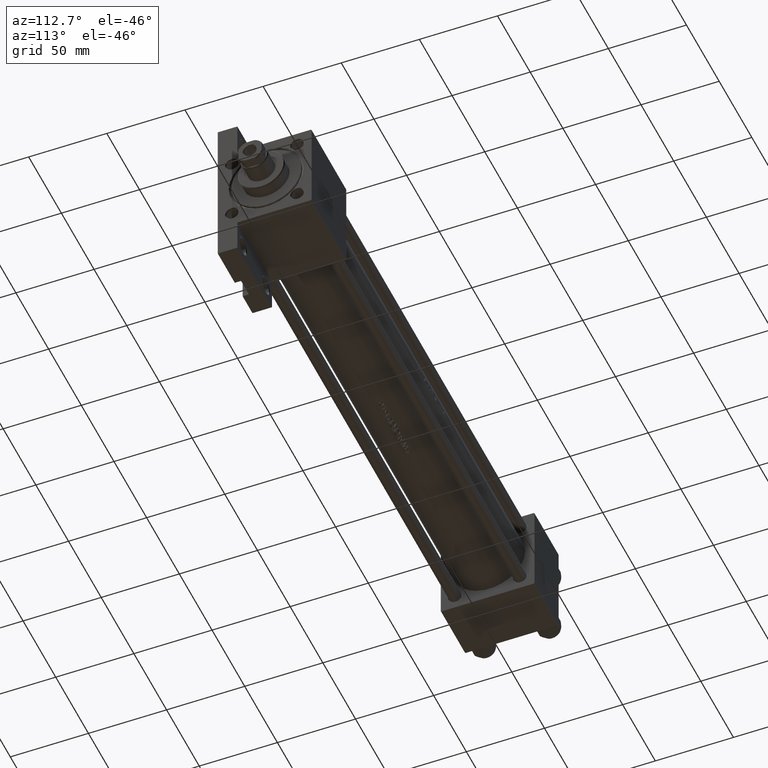
[diagram: clean part render]
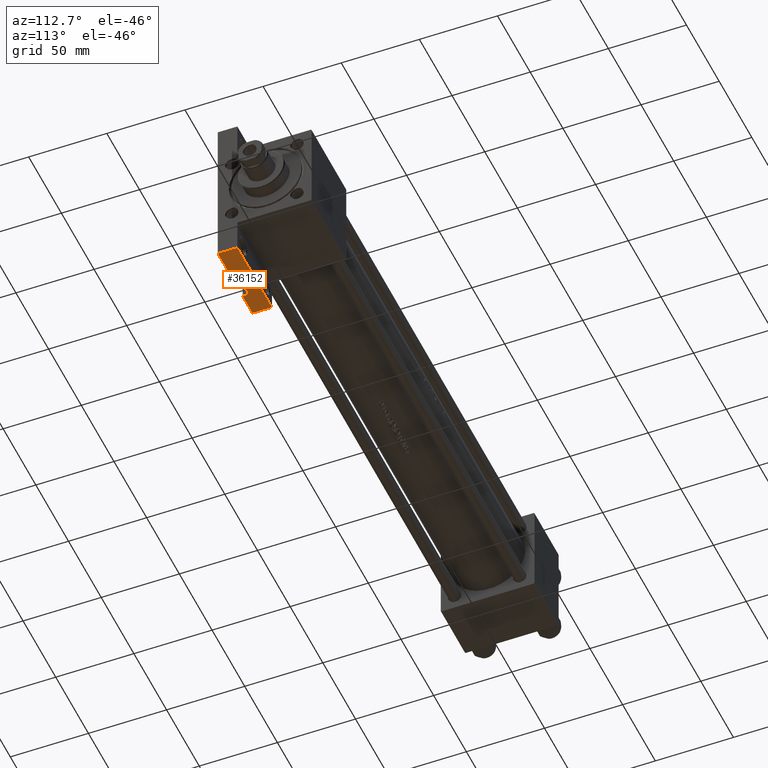
[diagram: same view with one face highlighted and labeled with its STEP entity id]
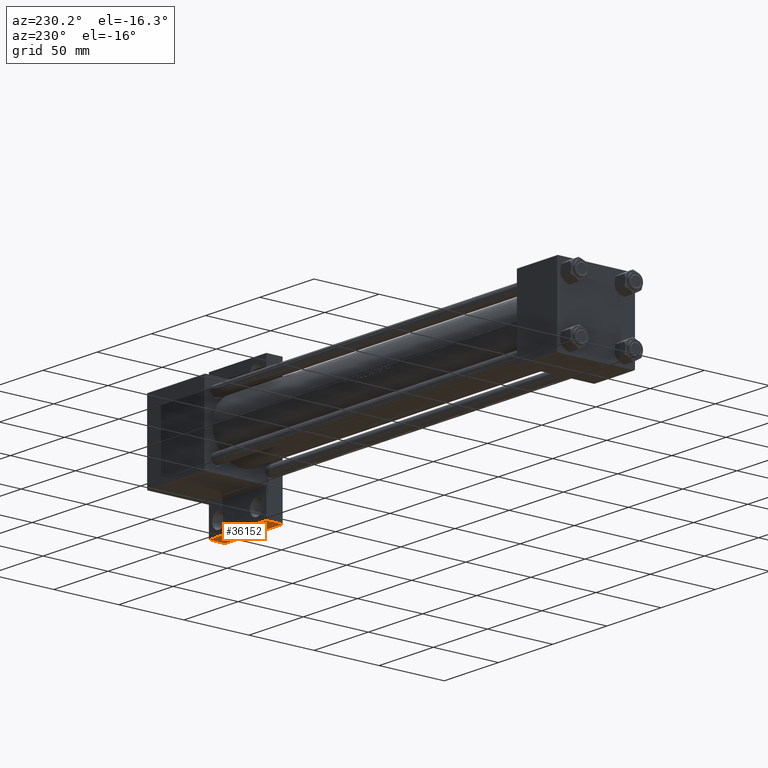
[diagram: same view with one face highlighted and labeled with its STEP entity id]
A machine part, auxiliary view. The second image highlights one B-rep face of the part: STEP entity #36152.
A second angle (auxiliary view) of the same face is appended — the face is thin or edge-on in the first view.
In plain terms, the highlighted planar face has unit normal (0, 0, -1).
Its self-contained STEP definition (entity closure, byte-faithful):
#125 = VERTEX_POINT ( 'NONE', #48625 ) ;
#752 = EDGE_CURVE ( 'NONE', #7010, #29960, #11059, .T. ) ;
#968 = DIRECTION ( 'NONE',  ( 1.000000000000000000, -2.618450529776310288E-16, 0.000000000000000000 ) ) ;
#1729 = DIRECTION ( 'NONE',  ( 2.618450529776310288E-16, 1.000000000000000000, 0.000000000000000000 ) ) ;
#1865 = VERTEX_POINT ( 'NONE', #38982 ) ;
#2897 = CARTESIAN_POINT ( 'NONE',  ( 378.0000000000000000, 51.49999999999996447, -17.49999999999999645 ) ) ;
#4071 = ORIENTED_EDGE ( 'NONE', *, *, #20569, .F. ) ;
#5078 = CARTESIAN_POINT ( 'NONE',  ( 340.0000000000000000, 51.49999999999997868, -25.99999999999999645 ) ) ;
#5558 = LINE ( 'NONE', #24537, #32766 ) ;
#7010 = VERTEX_POINT ( 'NONE', #15261 ) ;
#7556 = DIRECTION ( 'NONE',  ( 0.000000000000000000, 0.000000000000000000, -1.000000000000000000 ) ) ;
#8037 = ORIENTED_EDGE ( 'NONE', *, *, #752, .F. ) ;
#8239 = CARTESIAN_POINT ( 'NONE',  ( 352.0000000000000000, 51.49999999999997868, -29.99999999999999645 ) ) ;
#8556 = CARTESIAN_POINT ( 'NONE',  ( 378.0000000000000000, 51.49999999999996447, -17.49999999999999645 ) ) ;
#8563 = DIRECTION ( 'NONE',  ( 0.000000000000000000, 0.000000000000000000, -1.000000000000000000 ) ) ;
#11059 = LINE ( 'NONE', #26097, #28178 ) ;
#11411 = CARTESIAN_POINT ( 'NONE',  ( 340.0000000000000000, 51.49999999999997868, -29.99999999999999645 ) ) ;
#11913 = LINE ( 'NONE', #37777, #34407 ) ;
#13579 = DIRECTION ( 'NONE',  ( 1.000000000000000000, -2.618450529776310288E-16, 0.000000000000000000 ) ) ;
#14983 = LINE ( 'NONE', #2897, #46256 ) ;
#15261 = CARTESIAN_POINT ( 'NONE',  ( 324.9999999999999432, 51.49999999999997868, -17.49999999999999645 ) ) ;
#15360 = CARTESIAN_POINT ( 'NONE',  ( 324.9999999999999432, 51.49999999999997868, -29.99999999999999645 ) ) ;
#16283 = ORIENTED_EDGE ( 'NONE', *, *, #32820, .F. ) ;
#16905 = DIRECTION ( 'NONE',  ( 1.000000000000000000, 0.000000000000000000, 0.000000000000000000 ) ) ;
#17940 = VERTEX_POINT ( 'NONE', #11411 ) ;
#18461 = DIRECTION ( 'NONE',  ( -0.000000000000000000, -0.000000000000000000, -1.000000000000000000 ) ) ;
#19357 = ORIENTED_EDGE ( 'NONE', *, *, #45772, .F. ) ;
#19961 = AXIS2_PLACEMENT_3D ( 'NONE', #28101, #1729, #31552 ) ;
#20569 = EDGE_CURVE ( 'NONE', #20888, #1865, #43621, .T. ) ;
#20888 = VERTEX_POINT ( 'NONE', #8239 ) ;
#23907 = FACE_OUTER_BOUND ( 'NONE', #37906, .T. ) ;
#24537 = CARTESIAN_POINT ( 'NONE',  ( 340.0000000000000000, 51.49999999999997868, -25.99999999999999645 ) ) ;
#26097 = CARTESIAN_POINT ( 'NONE',  ( 324.9999999999999432, 51.49999999999997868, -17.49999999999999645 ) ) ;
#26613 = VECTOR ( 'NONE', #18461, 1000.000000000000000 ) ;
#28101 = CARTESIAN_POINT ( 'NONE',  ( 324.9999999999999432, 51.49999999999997868, -17.49999999999999645 ) ) ;
#28178 = VECTOR ( 'NONE', #8563, 1000.000000000000000 ) ;
#29513 = VERTEX_POINT ( 'NONE', #5078 ) ;
#29960 = VERTEX_POINT ( 'NONE', #15360 ) ;
#30155 = DIRECTION ( 'NONE',  ( 1.000000000000000000, -2.618450529776310288E-16, 0.000000000000000000 ) ) ;
#30510 = LINE ( 'NONE', #33234, #26613 ) ;
#30677 = ORIENTED_EDGE ( 'NONE', *, *, #31871, .T. ) ;
#31552 = DIRECTION ( 'NONE',  ( -1.000000000000000000, 2.618450529776310288E-16, 0.000000000000000000 ) ) ;
#31871 = EDGE_CURVE ( 'NONE', #44926, #1865, #14983, .T. ) ;
#32351 = DIRECTION ( 'NONE',  ( -0.000000000000000000, -0.000000000000000000, -1.000000000000000000 ) ) ;
#32369 = VECTOR ( 'NONE', #13579, 1000.000000000000000 ) ;
#32766 = VECTOR ( 'NONE', #16905, 1000.000000000000000 ) ;
#32820 = EDGE_CURVE ( 'NONE', #29960, #17940, #34719, .T. ) ;
#33234 = CARTESIAN_POINT ( 'NONE',  ( 352.0000000000000000, 51.49999999999997868, -25.99999999999999645 ) ) ;
#34298 = VECTOR ( 'NONE', #32351, 1000.000000000000000 ) ;
#34407 = VECTOR ( 'NONE', #30155, 1000.000000000000000 ) ;
#34719 = LINE ( 'NONE', #37685, #39661 ) ;
#36152 = ADVANCED_FACE ( 'NONE', ( #23907 ), #43357, .T. ) ;
#37685 = CARTESIAN_POINT ( 'NONE',  ( 324.9999999999999432, 51.49999999999997868, -29.99999999999999645 ) ) ;
#37777 = CARTESIAN_POINT ( 'NONE',  ( 324.9999999999999432, 51.49999999999997868, -17.49999999999999645 ) ) ;
#37847 = ORIENTED_EDGE ( 'NONE', *, *, #45159, .T. ) ;
#37906 = EDGE_LOOP ( 'NONE', ( #19357, #45020, #40886, #16283, #8037, #37847, #30677, #4071 ) ) ;
#38982 = CARTESIAN_POINT ( 'NONE',  ( 378.0000000000000000, 51.49999999999996447, -29.99999999999999645 ) ) ;
#39242 = LINE ( 'NONE', #43184, #34298 ) ;
#39661 = VECTOR ( 'NONE', #968, 1000.000000000000000 ) ;
#40412 = CARTESIAN_POINT ( 'NONE',  ( 324.9999999999999432, 51.49999999999997868, -29.99999999999999645 ) ) ;
#40886 = ORIENTED_EDGE ( 'NONE', *, *, #41632, .T. ) ;
#41632 = EDGE_CURVE ( 'NONE', #29513, #17940, #39242, .T. ) ;
#42153 = EDGE_CURVE ( 'NONE', #29513, #125, #5558, .T. ) ;
#43184 = CARTESIAN_POINT ( 'NONE',  ( 340.0000000000000000, 51.49999999999997868, -25.99999999999999645 ) ) ;
#43357 = PLANE ( 'NONE',  #19961 ) ;
#43621 = LINE ( 'NONE', #40412, #32369 ) ;
#44926 = VERTEX_POINT ( 'NONE', #8556 ) ;
#45020 = ORIENTED_EDGE ( 'NONE', *, *, #42153, .F. ) ;
#45159 = EDGE_CURVE ( 'NONE', #7010, #44926, #11913, .T. ) ;
#45772 = EDGE_CURVE ( 'NONE', #125, #20888, #30510, .T. ) ;
#46256 = VECTOR ( 'NONE', #7556, 1000.000000000000000 ) ;
#48625 = CARTESIAN_POINT ( 'NONE',  ( 352.0000000000000000, 51.49999999999997868, -25.99999999999999645 ) ) ;